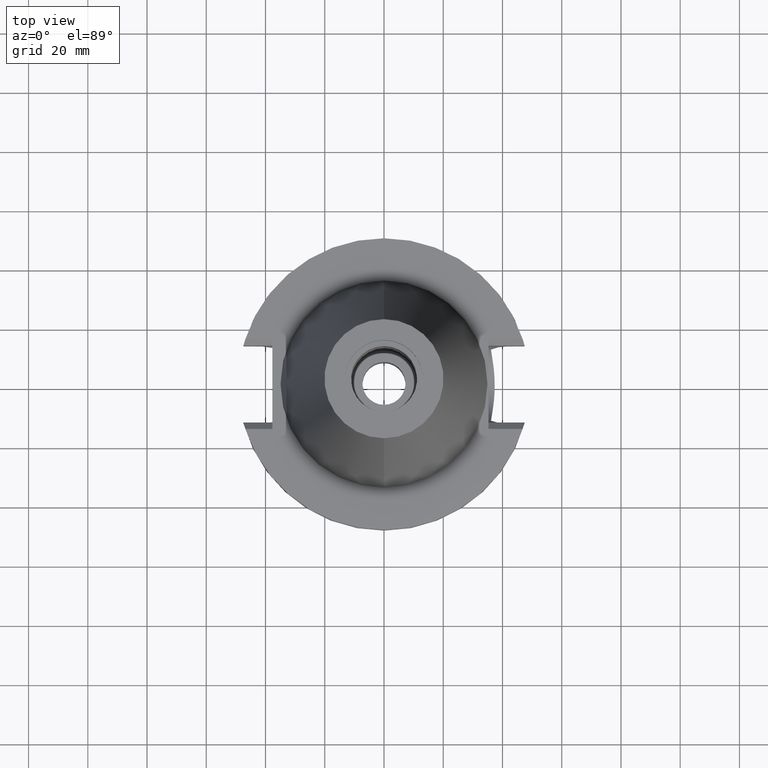
[diagram: clean part render]
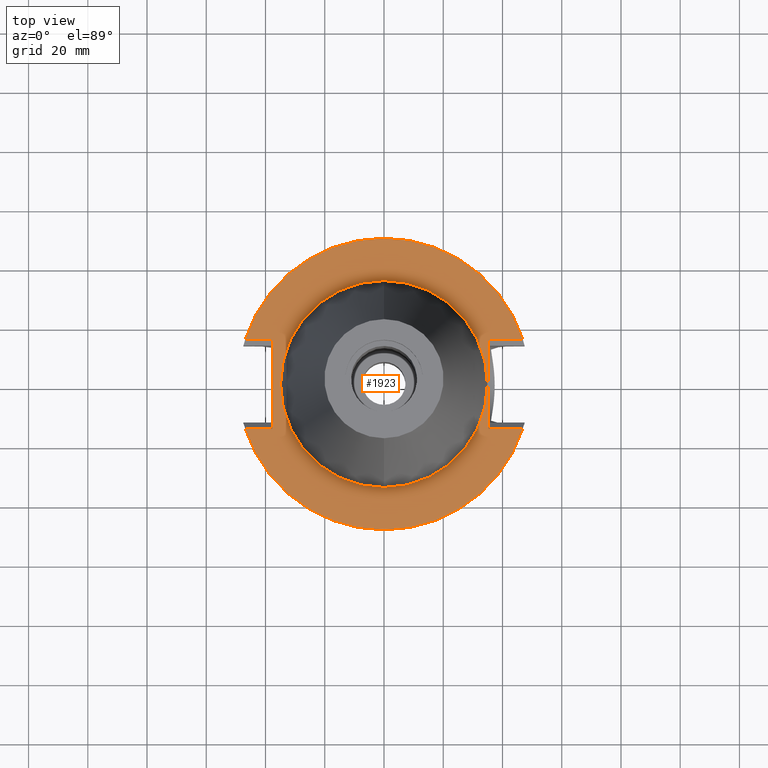
[diagram: same view with one face highlighted and labeled with its STEP entity id]
A machine part, top view. The second image highlights one B-rep face of the part: STEP entity #1923.
In plain terms, the highlighted planar face has unit normal (0, 0, -1).
Its self-contained STEP definition (entity closure, byte-faithful):
#94=DIRECTION('',(0.E0,-1.E0,0.E0));
#95=VECTOR('',#94,3.031E1);
#96=CARTESIAN_POINT('',(3.527E1,1.5155E1,-1.5E0));
#97=LINE('',#96,#95);
#101=DIRECTION('',(1.E0,0.E0,0.E0));
#102=VECTOR('',#101,1.155089417397E1);
#103=CARTESIAN_POINT('',(3.527E1,-1.5155E1,-1.5E0));
#104=LINE('',#103,#102);
#108=CARTESIAN_POINT('',(0.E0,1.370134838886E-14,-1.5E0));
#109=DIRECTION('',(0.E0,0.E0,-1.E0));
#110=DIRECTION('',(9.514024724200E-1,-3.079502159004E-1,0.E0));
#111=AXIS2_PLACEMENT_3D('',#108,#109,#110);
#116=CARTESIAN_POINT('',(0.E0,1.370134838886E-14,-1.5E0));
#117=DIRECTION('',(0.E0,0.E0,-1.E0));
#118=DIRECTION('',(0.E0,-1.E0,0.E0));
#119=AXIS2_PLACEMENT_3D('',#116,#117,#118);
#124=DIRECTION('',(0.E0,1.E0,0.E0));
#125=VECTOR('',#124,3.031E1);
#126=CARTESIAN_POINT('',(-3.768E1,-1.5155E1,-1.5E0));
#127=LINE('',#126,#125);
#131=DIRECTION('',(-1.E0,-1.204850662821E-14,0.E0));
#132=VECTOR('',#131,9.140894173969E0);
#133=CARTESIAN_POINT('',(-3.768E1,1.5155E1,-1.5E0));
#134=LINE('',#133,#132);
#138=CARTESIAN_POINT('',(0.E0,1.370134838886E-14,-1.5E0));
#139=DIRECTION('',(0.E0,0.E0,-1.E0));
#140=DIRECTION('',(-9.514024724200E-1,3.079502159004E-1,0.E0));
#141=AXIS2_PLACEMENT_3D('',#138,#139,#140);
#146=CARTESIAN_POINT('',(0.E0,1.370134838886E-14,-1.5E0));
#147=DIRECTION('',(0.E0,0.E0,-1.E0));
#148=DIRECTION('',(0.E0,1.E0,0.E0));
#149=AXIS2_PLACEMENT_3D('',#146,#147,#148);
#154=CARTESIAN_POINT('',(0.E0,1.370134838886E-14,-1.5E0));
#155=DIRECTION('',(0.E0,0.E0,1.E0));
#156=DIRECTION('',(0.E0,-1.E0,0.E0));
#157=AXIS2_PLACEMENT_3D('',#154,#155,#156);
#162=CARTESIAN_POINT('',(0.E0,1.370134838886E-14,-1.5E0));
#163=DIRECTION('',(0.E0,0.E0,1.E0));
#164=DIRECTION('',(0.E0,1.E0,0.E0));
#165=AXIS2_PLACEMENT_3D('',#162,#163,#164);
#221=DIRECTION('',(1.E0,0.E0,0.E0));
#222=VECTOR('',#221,1.155089417397E1);
#223=CARTESIAN_POINT('',(3.527E1,1.5155E1,-1.5E0));
#224=LINE('',#223,#222);
#468=DIRECTION('',(-1.E0,1.204850662821E-14,0.E0));
#469=VECTOR('',#468,9.140894173969E0);
#470=CARTESIAN_POINT('',(-3.768E1,-1.5155E1,-1.5E0));
#471=LINE('',#470,#469);
#1661=CARTESIAN_POINT('',(-3.768E1,-1.5155E1,-1.5E0));
#1662=CARTESIAN_POINT('',(-3.768E1,1.5155E1,-1.5E0));
#1663=VERTEX_POINT('',#1661);
#1664=VERTEX_POINT('',#1662);
#1680=CARTESIAN_POINT('',(3.527E1,1.5155E1,-1.5E0));
#1681=CARTESIAN_POINT('',(3.527E1,-1.5155E1,-1.5E0));
#1682=VERTEX_POINT('',#1680);
#1683=VERTEX_POINT('',#1681);
#1684=CARTESIAN_POINT('',(4.682089417397E1,-1.5155E1,-1.5E0));
#1685=VERTEX_POINT('',#1684);
#1686=CARTESIAN_POINT('',(0.E0,-4.92125E1,-1.5E0));
#1687=CARTESIAN_POINT('',(-4.682089417397E1,-1.5155E1,-1.5E0));
#1688=VERTEX_POINT('',#1686);
#1689=VERTEX_POINT('',#1687);
#1690=CARTESIAN_POINT('',(-4.682089417397E1,1.5155E1,-1.5E0));
#1691=VERTEX_POINT('',#1690);
#1692=CARTESIAN_POINT('',(0.E0,4.92125E1,-1.5E0));
#1693=CARTESIAN_POINT('',(4.682089417397E1,1.5155E1,-1.5E0));
#1694=VERTEX_POINT('',#1692);
#1695=VERTEX_POINT('',#1693);
#1696=CARTESIAN_POINT('',(0.E0,-3.4925E1,-1.5E0));
#1697=CARTESIAN_POINT('',(0.E0,3.4925E1,-1.5E0));
#1698=VERTEX_POINT('',#1696);
#1699=VERTEX_POINT('',#1697);
#1892=CARTESIAN_POINT('',(0.E0,0.E0,-1.5E0));
#1893=DIRECTION('',(0.E0,0.E0,-1.E0));
#1894=DIRECTION('',(0.E0,-1.E0,0.E0));
#1895=AXIS2_PLACEMENT_3D('',#1892,#1893,#1894);
#1896=PLANE('',#1895);
#1898=ORIENTED_EDGE('',*,*,#1897,.T.);
#1900=ORIENTED_EDGE('',*,*,#1899,.T.);
#1902=ORIENTED_EDGE('',*,*,#1901,.T.);
#1904=ORIENTED_EDGE('',*,*,#1903,.T.);
#1906=ORIENTED_EDGE('',*,*,#1905,.F.);
#1908=ORIENTED_EDGE('',*,*,#1907,.T.);
#1910=ORIENTED_EDGE('',*,*,#1909,.T.);
#1912=ORIENTED_EDGE('',*,*,#1911,.T.);
#1914=ORIENTED_EDGE('',*,*,#1913,.T.);
#1916=ORIENTED_EDGE('',*,*,#1915,.F.);
#1917=EDGE_LOOP('',(#1898,#1900,#1902,#1904,#1906,#1908,#1910,#1912,#1914,
#1916));
#1918=FACE_OUTER_BOUND('',#1917,.F.);
#1919=ORIENTED_EDGE('',*,*,#1871,.T.);
#1920=ORIENTED_EDGE('',*,*,#1887,.T.);
#1921=EDGE_LOOP('',(#1919,#1920));
#1922=FACE_BOUND('',#1921,.F.);
#112=CIRCLE('',#111,4.92125E1);
#120=CIRCLE('',#119,4.92125E1);
#142=CIRCLE('',#141,4.92125E1);
#150=CIRCLE('',#149,4.92125E1);
#158=CIRCLE('',#157,3.4925E1);
#166=CIRCLE('',#165,3.4925E1);
#1871=EDGE_CURVE('',#1698,#1699,#158,.T.);
#1887=EDGE_CURVE('',#1699,#1698,#166,.T.);
#1897=EDGE_CURVE('',#1682,#1683,#97,.T.);
#1899=EDGE_CURVE('',#1683,#1685,#104,.T.);
#1901=EDGE_CURVE('',#1685,#1688,#112,.T.);
#1903=EDGE_CURVE('',#1688,#1689,#120,.T.);
#1905=EDGE_CURVE('',#1663,#1689,#471,.T.);
#1907=EDGE_CURVE('',#1663,#1664,#127,.T.);
#1909=EDGE_CURVE('',#1664,#1691,#134,.T.);
#1911=EDGE_CURVE('',#1691,#1694,#142,.T.);
#1913=EDGE_CURVE('',#1694,#1695,#150,.T.);
#1915=EDGE_CURVE('',#1682,#1695,#224,.T.);
#1923=ADVANCED_FACE('',(#1918,#1922),#1896,.F.);